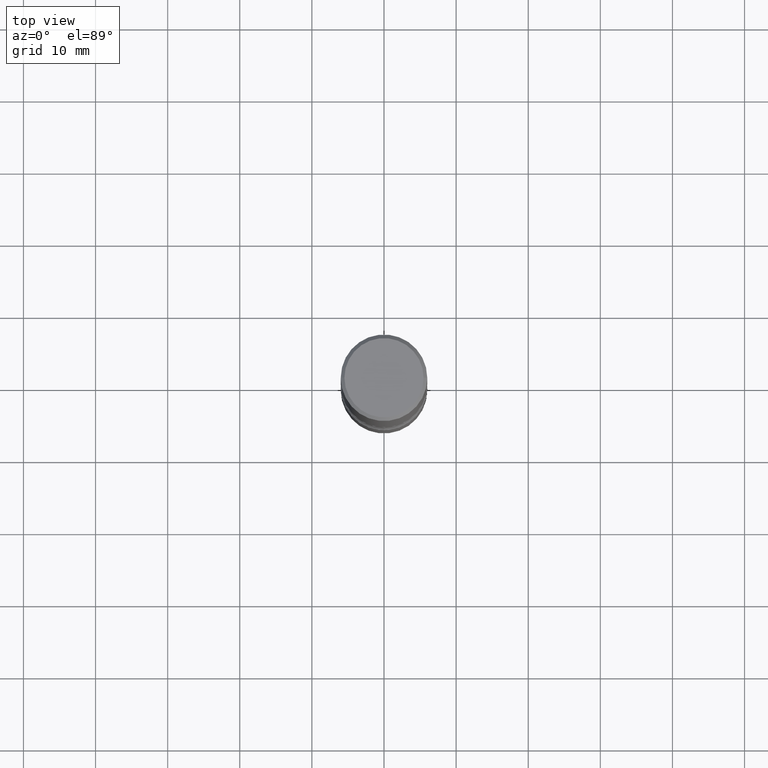
[diagram: clean part render]
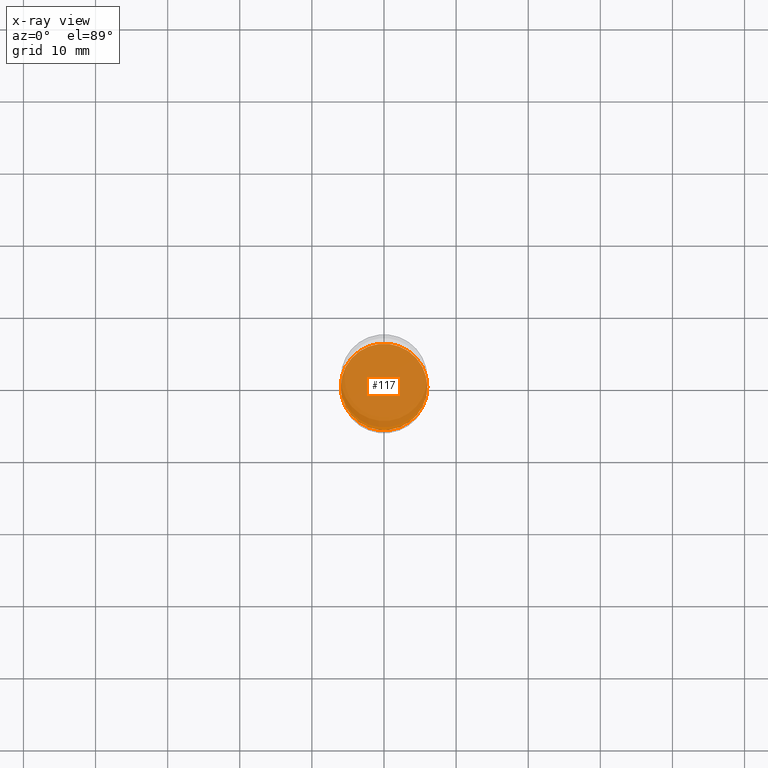
[diagram: x-ray — body ghosted, one internal face saturated and labeled with its STEP entity id]
A machine part, top view, then the same camera in x-ray: the body is ghosted and one INTERNAL B-rep face — a face not visible from any outside direction — is saturated and labeled: STEP entity #117.
In plain terms, the highlighted planar face has unit normal (0, -0, -1).
Its self-contained STEP definition (entity closure, byte-faithful):
#2 = AXIS2_PLACEMENT_3D ( 'NONE', #234, #534, #149 ) ;
#48 = EDGE_CURVE ( 'NONE', #119, #556, #253, .T. ) ;
#73 = EDGE_CURVE ( 'NONE', #556, #119, #106, .T. ) ;
#79 = DIRECTION ( 'NONE',  ( -2.445468806185136597E-29, 3.491481338843145583E-15, 1.000000000000000000 ) ) ;
#104 = DIRECTION ( 'NONE',  ( 1.000000000000000000, -6.982962677686269077E-15, 0.000000000000000000 ) ) ;
#106 = CIRCLE ( 'NONE', #313, 0.2362000000000001321 ) ;
#117 = ADVANCED_FACE ( 'NONE', ( #395 ), #502, .F. ) ;
#119 = VERTEX_POINT ( 'NONE', #153 ) ;
#149 = DIRECTION ( 'NONE',  ( 1.000000000000000000, -6.982962677686269077E-15, 0.000000000000000000 ) ) ;
#153 = CARTESIAN_POINT ( 'NONE',  ( -0.2362000000000001321, -1.022834771985753829E-14, -2.913400000000000212 ) ) ;
#210 = DIRECTION ( 'NONE',  ( 2.438088387897960049E-29, -3.491481338843145188E-15, -1.000000000000000000 ) ) ;
#213 = CARTESIAN_POINT ( 'NONE',  ( 7.124628819939777829E-29, -1.017208173258562247E-14, -2.913400000000000212 ) ) ;
#234 = CARTESIAN_POINT ( 'NONE',  ( 7.124628819939777829E-29, -1.017208173258562247E-14, -2.913400000000000212 ) ) ;
#246 = DIRECTION ( 'NONE',  ( -1.000000000000000000, 6.982962677686265922E-15, -4.876176775795935793E-29 ) ) ;
#253 = CIRCLE ( 'NONE', #2, 0.2362000000000001321 ) ;
#290 = EDGE_LOOP ( 'NONE', ( #498, #339 ) ) ;
#313 = AXIS2_PLACEMENT_3D ( 'NONE', #213, #79, #104 ) ;
#339 = ORIENTED_EDGE ( 'NONE', *, *, #48, .T. ) ;
#360 = CARTESIAN_POINT ( 'NONE',  ( 0.2362000000000001321, -1.182145751705511899E-14, -2.913400000000000212 ) ) ;
#386 = AXIS2_PLACEMENT_3D ( 'NONE', #537, #210, #246 ) ;
#395 = FACE_OUTER_BOUND ( 'NONE', #290, .T. ) ;
#498 = ORIENTED_EDGE ( 'NONE', *, *, #73, .T. ) ;
#502 = PLANE ( 'NONE',  #386 ) ;
#534 = DIRECTION ( 'NONE',  ( -2.445468806185136597E-29, 3.491481338843145583E-15, 1.000000000000000000 ) ) ;
#537 = CARTESIAN_POINT ( 'NONE',  ( 7.124628819939777829E-29, -1.017208173258562247E-14, -2.913400000000000212 ) ) ;
#556 = VERTEX_POINT ( 'NONE', #360 ) ;